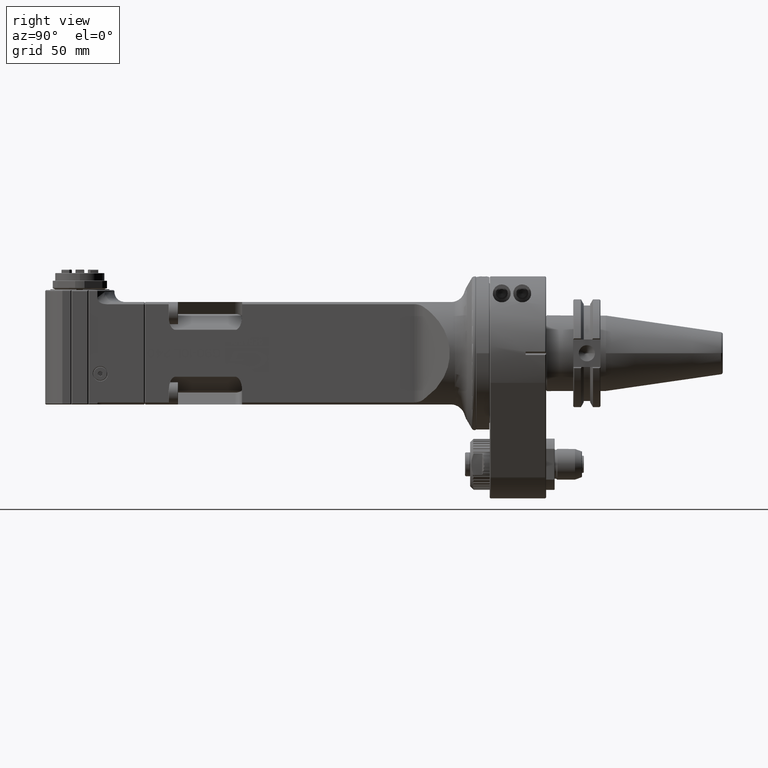
[diagram: clean part render]
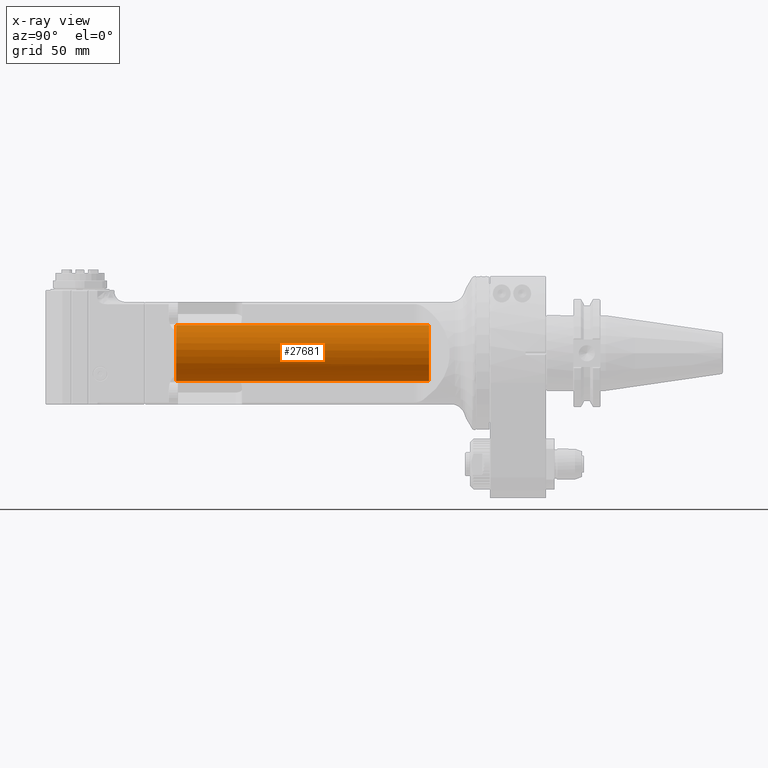
[diagram: x-ray — body ghosted, one internal face saturated and labeled with its STEP entity id]
A machine part, right view, then the same camera in x-ray: the body is ghosted and one INTERNAL B-rep face — a face not visible from any outside direction — is saturated and labeled: STEP entity #27681.
In plain terms, the highlighted cylindrical surface (bore or boss wall) has radius 16.5 mm, axis along (0, -1, -0).
Its self-contained STEP definition (entity closure, byte-faithful):
#1924=CIRCLE('',#30264,16.5);
#1925=CIRCLE('',#30265,16.5);
#1926=CIRCLE('',#30267,16.5);
#2192=CYLINDRICAL_SURFACE('',#30266,16.5);
#3705=FACE_OUTER_BOUND('',#5372,.T.);
#5372=EDGE_LOOP('',(#25138,#25139,#25140,#25141,#25142));
#7955=LINE('',#52053,#10532);
#10532=VECTOR('',#37897,16.5);
#13139=VERTEX_POINT('',#52046);
#13140=VERTEX_POINT('',#52047);
#13141=VERTEX_POINT('',#52052);
#17144=EDGE_CURVE('',#13139,#13140,#1924,.T.);
#17145=EDGE_CURVE('',#13140,#13139,#1925,.T.);
#17147=EDGE_CURVE('',#13139,#13141,#7955,.T.);
#17148=EDGE_CURVE('',#13141,#13141,#1926,.T.);
#25138=ORIENTED_EDGE('',*,*,#17144,.T.);
#25139=ORIENTED_EDGE('',*,*,#17145,.T.);
#25140=ORIENTED_EDGE('',*,*,#17147,.T.);
#25141=ORIENTED_EDGE('',*,*,#17148,.F.);
#25142=ORIENTED_EDGE('',*,*,#17147,.F.);
#27681=ADVANCED_FACE('',(#3705),#2192,.F.);
#30264=AXIS2_PLACEMENT_3D('',#52048,#37890,#37891);
#30265=AXIS2_PLACEMENT_3D('',#52049,#37892,#37893);
#30266=AXIS2_PLACEMENT_3D('',#52051,#37895,#37896);
#30267=AXIS2_PLACEMENT_3D('',#52054,#37898,#37899);
#37890=DIRECTION('center_axis',(0.,-1.,0.));
#37891=DIRECTION('ref_axis',(1.,0.,0.));
#37892=DIRECTION('center_axis',(0.,-1.,0.));
#37893=DIRECTION('ref_axis',(1.,0.,0.));
#37895=DIRECTION('center_axis',(0.,1.,0.));
#37896=DIRECTION('ref_axis',(1.,0.,0.));
#37897=DIRECTION('',(0.,1.,0.));
#37898=DIRECTION('center_axis',(0.,-1.,0.));
#37899=DIRECTION('ref_axis',(1.,0.,0.));
#52046=CARTESIAN_POINT('',(-16.5,60.5991166595732,1.40982728528806E-10));
#52047=CARTESIAN_POINT('',(-5.21038033693031E-14,60.5991166595732,16.5));
#52048=CARTESIAN_POINT('Origin',(0.,60.5991166595732,0.));
#52049=CARTESIAN_POINT('Origin',(0.,60.5991166595732,0.));
#52051=CARTESIAN_POINT('Origin',(0.,-11.4,0.));
#52052=CARTESIAN_POINT('',(-16.5,208.6,2.02066721859313E-15));
#52053=CARTESIAN_POINT('',(-16.5,-11.4,2.02066721859313E-15));
#52054=CARTESIAN_POINT('Origin',(2.555224934709E-14,208.6,0.));